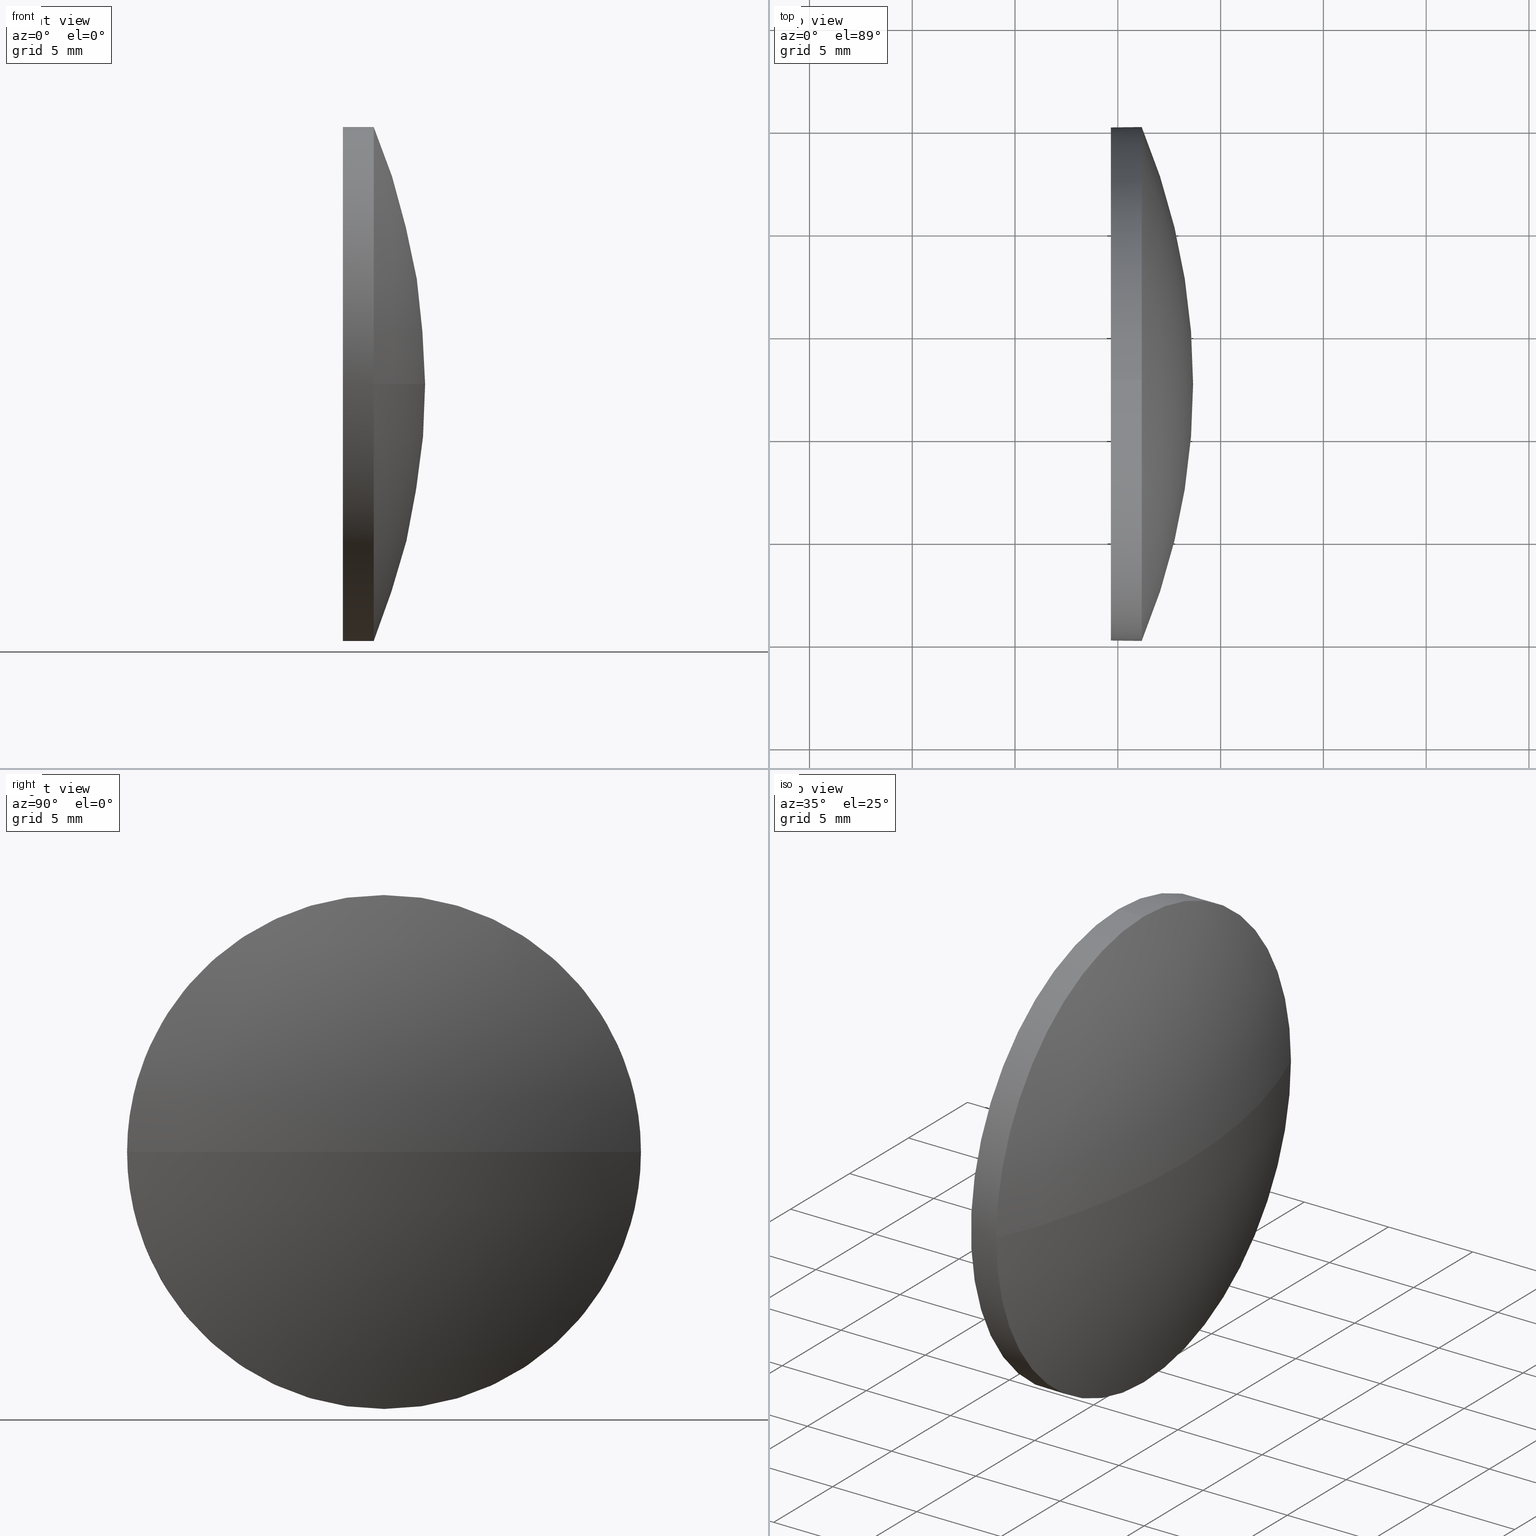
[diagram: canonical four-view strip — front | top / right | iso, engineering-drawing reading convention]
A machine part, canonical four-view strip (front | top / right | iso — engineering-drawing reading convention). The complete STEP part file that produces these views, byte-faithful:
ISO-10303-21;
HEADER;
FILE_DESCRIPTION (( 'STEP AP214' ),
    '1' );
FILE_NAME ('100213.STEP',
    '2019-05-23T08:19:44',
    ( '' ),
    ( '' ),
    'SwSTEP 2.0',
    'SolidWorks 2016',
    '' );
FILE_SCHEMA (( 'AUTOMOTIVE_DESIGN' ));
ENDSEC;

DATA;
#1 = AXIS2_PLACEMENT_3D ( 'NONE', #147, #84, #47 ) ;
#2 = COLOUR_RGB ( '',1.000000000000000000, 1.000000000000000000, 1.000000000000000000 ) ;
#3 = ORIENTED_EDGE ( 'NONE', *, *, #12, .F. ) ;
#4 = VECTOR ( 'NONE', #179, 1000.000000000000000 ) ;
#5 = ORIENTED_EDGE ( 'NONE', *, *, #106, .F. ) ;
#6 = AXIS2_PLACEMENT_3D ( 'NONE', #137, #65, #86 ) ;
#7 = CARTESIAN_POINT ( 'NONE',  ( 549.6628150025262600, 7.574565257038786500, -12.50000000000000000 ) ) ;
#8 = FILL_AREA_STYLE ('',( #112 ) ) ;
#9 = CYLINDRICAL_SURFACE ( 'NONE', #6, 12.50000000000000000 ) ;
#10 = AXIS2_PLACEMENT_3D ( 'NONE', #67, #163, #97 ) ;
#11 =( LENGTH_UNIT ( ) NAMED_UNIT ( * ) SI_UNIT ( .MILLI., .METRE. ) );
#12 = EDGE_CURVE ( 'NONE', #176, #143, #101, .T. ) ;
#13 = ADVANCED_FACE ( 'NONE', ( #107 ), #172, .F. ) ;
#14 = ORIENTED_EDGE ( 'NONE', *, *, #12, .T. ) ;
#15 = VERTEX_POINT ( 'NONE', #133 ) ;
#16 = DIRECTION ( 'NONE',  ( 0.0000000000000000000, 1.000000000000000000, 0.0000000000000000000 ) ) ;
#17 = ORIENTED_EDGE ( 'NONE', *, *, #178, .F. ) ;
#18 = DIRECTION ( 'NONE',  ( -0.0000000000000000000, 0.0000000000000000000, -1.000000000000000000 ) ) ;
#19 = ORIENTED_EDGE ( 'NONE', *, *, #26, .T. ) ;
#20 = DIRECTION ( 'NONE',  ( -1.000000000000000000, -0.0000000000000000000, -0.0000000000000000000 ) ) ;
#21 = EDGE_CURVE ( 'NONE', #27, #120, #156, .T. ) ;
#22 = CIRCLE ( 'NONE', #52, 12.50000000000000000 ) ;
#23 = CARTESIAN_POINT ( 'NONE',  ( 551.1628150025262600, 20.07456525703875600, 0.0000000000000000000 ) ) ;
#24 = APPLICATION_CONTEXT ( 'automotive_design' ) ;
#25 = ADVANCED_FACE ( 'NONE', ( #128 ), #158, .T. ) ;
#26 = EDGE_CURVE ( 'NONE', #153, #27, #54, .T. ) ;
#27 = VERTEX_POINT ( 'NONE', #62 ) ;
#28 = SURFACE_STYLE_FILL_AREA ( #183 ) ;
#29 =( GEOMETRIC_REPRESENTATION_CONTEXT ( 3 ) GLOBAL_UNCERTAINTY_ASSIGNED_CONTEXT ( ( #43 ) ) GLOBAL_UNIT_ASSIGNED_CONTEXT ( ( #11, #165, #117 ) ) REPRESENTATION_CONTEXT ( 'NONE', 'WORKASPACE' ) );
#30 = PRESENTATION_STYLE_ASSIGNMENT (( #51 ) ) ;
#31 = EDGE_CURVE ( 'NONE', #120, #116, #90, .T. ) ;
#32 = ORIENTED_EDGE ( 'NONE', *, *, #168, .F. ) ;
#33 = DIRECTION ( 'NONE',  ( 0.0000000000000000000, 0.0000000000000000000, 1.000000000000000000 ) ) ;
#34 = CARTESIAN_POINT ( 'NONE',  ( 521.1628150025261400, 7.574565257038766000, 0.0000000000000000000 ) ) ;
#35 = AXIS2_PLACEMENT_3D ( 'NONE', #34, #136, #49 ) ;
#36 = CARTESIAN_POINT ( 'NONE',  ( 549.6628150025262600, 7.574565257038784700, 0.0000000000000000000 ) ) ;
#37 = DIRECTION ( 'NONE',  ( 0.0000000000000000000, 1.000000000000000000, 1.224646799147353000E-016 ) ) ;
#38 = SURFACE_SIDE_STYLE ('',( #76 ) ) ;
#39 =( NAMED_UNIT ( * ) SI_UNIT ( $, .STERADIAN. ) SOLID_ANGLE_UNIT ( ) );
#40 = ORIENTED_EDGE ( 'NONE', *, *, #77, .F. ) ;
#41 = AXIS2_PLACEMENT_3D ( 'NONE', #99, #113, #33 ) ;
#42 = PRODUCT_CONTEXT ( 'NONE', #24, 'mechanical' ) ;
#43 = UNCERTAINTY_MEASURE_WITH_UNIT (LENGTH_MEASURE( 1.000000000000000100E-005 ), #11, 'distance_accuracy_value', 'NONE');
#44 =( LENGTH_UNIT ( ) NAMED_UNIT ( * ) SI_UNIT ( .MILLI., .METRE. ) );
#45 = FACE_OUTER_BOUND ( 'NONE', #166, .T. ) ;
#46 = EDGE_CURVE ( 'NONE', #176, #27, #140, .T. ) ;
#47 = DIRECTION ( 'NONE',  ( 0.0000000000000000000, 0.0000000000000000000, 1.000000000000000000 ) ) ;
#48 = ORIENTED_EDGE ( 'NONE', *, *, #21, .F. ) ;
#49 = DIRECTION ( 'NONE',  ( 1.000000000000000000, 0.0000000000000000000, 0.0000000000000000000 ) ) ;
#50 =( LENGTH_UNIT ( ) NAMED_UNIT ( * ) SI_UNIT ( .MILLI., .METRE. ) );
#51 = SURFACE_STYLE_USAGE ( .BOTH. , #38 ) ;
#52 = AXIS2_PLACEMENT_3D ( 'NONE', #100, #159, #80 ) ;
#53 = FILL_AREA_STYLE_COLOUR ( '', #2 ) ;
#54 = CIRCLE ( 'NONE', #83, 32.50000000000011400 ) ;
#55 = SHAPE_DEFINITION_REPRESENTATION ( #169, #95 ) ;
#56 = AXIS2_PLACEMENT_3D ( 'NONE', #79, #173, #132 ) ;
#57 = VECTOR ( 'NONE', #157, 1000.000000000000000 ) ;
#58 = ADVANCED_FACE ( 'NONE', ( #81 ), #9, .T. ) ;
#59 = ORIENTED_EDGE ( 'NONE', *, *, #46, .F. ) ;
#60 = CIRCLE ( 'NONE', #10, 12.50000000000000000 ) ;
#61 = LINE ( 'NONE', #138, #4 ) ;
#62 = CARTESIAN_POINT ( 'NONE',  ( 551.1628150025262600, -4.925434742961205500, -1.530808498934188000E-015 ) ) ;
#63 = SPHERICAL_SURFACE ( 'NONE', #69, 32.50000000000011400 ) ;
#64 = CIRCLE ( 'NONE', #35, 32.50000000000008500 ) ;
#65 = DIRECTION ( 'NONE',  ( -1.000000000000000000, -0.0000000000000000000, -0.0000000000000000000 ) ) ;
#66 = DIRECTION ( 'NONE',  ( 0.0000000000000000000, 1.000000000000000000, 0.0000000000000000000 ) ) ;
#67 = CARTESIAN_POINT ( 'NONE',  ( 549.6628150025262600, 7.574565257038784700, 0.0000000000000000000 ) ) ;
#68 = CARTESIAN_POINT ( 'NONE',  ( 521.1628150025261400, 7.574565257038766000, 0.0000000000000000000 ) ) ;
#69 = AXIS2_PLACEMENT_3D ( 'NONE', #177, #125, #66 ) ;
#70 = SURFACE_SIDE_STYLE ('',( #28 ) ) ;
#71 = AXIS2_PLACEMENT_3D ( 'NONE', #181, #20, #161 ) ;
#72 = DIRECTION ( 'NONE',  ( -1.000000000000000000, -0.0000000000000000000, -0.0000000000000000000 ) ) ;
#73 = COLOUR_RGB ( '',1.000000000000000000, 1.000000000000000000, 1.000000000000000000 ) ;
#74 = ADVANCED_FACE ( 'NONE', ( #45 ), #63, .T. ) ;
#75 = ORIENTED_EDGE ( 'NONE', *, *, #46, .T. ) ;
#76 = SURFACE_STYLE_FILL_AREA ( #8 ) ;
#77 = EDGE_CURVE ( 'NONE', #116, #176, #22, .T. ) ;
#78 = CLOSED_SHELL ( 'NONE', ( #58, #74, #25, #88, #13 ) ) ;
#79 = CARTESIAN_POINT ( 'NONE',  ( 549.6628150025262600, 7.574565257038784700, 0.0000000000000000000 ) ) ;
#80 = DIRECTION ( 'NONE',  ( 0.0000000000000000000, 0.0000000000000000000, 1.000000000000000000 ) ) ;
#81 = FACE_OUTER_BOUND ( 'NONE', #96, .T. ) ;
#82 =( NAMED_UNIT ( * ) PLANE_ANGLE_UNIT ( ) SI_UNIT ( $, .RADIAN. ) );
#83 = AXIS2_PLACEMENT_3D ( 'NONE', #68, #160, #37 ) ;
#84 = DIRECTION ( 'NONE',  ( -1.000000000000000000, -0.0000000000000000000, -0.0000000000000000000 ) ) ;
#85 = PRESENTATION_LAYER_ASSIGNMENT (  '', '', ( #124 ) ) ;
#86 = DIRECTION ( 'NONE',  ( 0.0000000000000000000, 0.0000000000000000000, 1.000000000000000000 ) ) ;
#87 = ORIENTED_EDGE ( 'NONE', *, *, #26, .F. ) ;
#88 = ADVANCED_FACE ( 'NONE', ( #162 ), #149, .T. ) ;
#89 = EDGE_CURVE ( 'NONE', #120, #15, #61, .T. ) ;
#90 = CIRCLE ( 'NONE', #71, 12.50000000000000000 ) ;
#91 = ORIENTED_EDGE ( 'NONE', *, *, #89, .F. ) ;
#92 = DIRECTION ( 'NONE',  ( 0.0000000000000000000, 0.0000000000000000000, 1.000000000000000000 ) ) ;
#93 = CARTESIAN_POINT ( 'NONE',  ( 547.6337074240892700, 7.574565257038786500, -12.50000000000000000 ) ) ;
#94 =( GEOMETRIC_REPRESENTATION_CONTEXT ( 3 ) GLOBAL_UNCERTAINTY_ASSIGNED_CONTEXT ( ( #170 ) ) GLOBAL_UNIT_ASSIGNED_CONTEXT ( ( #50, #82, #180 ) ) REPRESENTATION_CONTEXT ( 'NONE', 'WORKASPACE' ) );
#95 = ADVANCED_BREP_SHAPE_REPRESENTATION ( '100213', ( #110, #145 ), #174 ) ;
#96 = EDGE_LOOP ( 'NONE', ( #111, #14, #17, #91, #129 ) ) ;
#97 = DIRECTION ( 'NONE',  ( 0.0000000000000000000, 0.0000000000000000000, 1.000000000000000000 ) ) ;
#98 = PRESENTATION_LAYER_ASSIGNMENT (  '', '', ( #152 ) ) ;
#99 = CARTESIAN_POINT ( 'NONE',  ( 547.6337074240892700, 7.574565257038784700, 0.0000000000000000000 ) ) ;
#100 = CARTESIAN_POINT ( 'NONE',  ( 551.1628150025262600, 7.574565257038784700, 0.0000000000000000000 ) ) ;
#101 = LINE ( 'NONE', #93, #57 ) ;
#102 = PRODUCT_RELATED_PRODUCT_CATEGORY ( 'part', '', ( #155 ) ) ;
#103 = APPLICATION_PROTOCOL_DEFINITION ( 'draft international standard', 'automotive_design', 1998, #185 ) ;
#104 = DIRECTION ( 'NONE',  ( 1.000000000000000000, 0.0000000000000000000, 0.0000000000000000000 ) ) ;
#105 = AXIS2_PLACEMENT_3D ( 'NONE', #134, #175, #92 ) ;
#106 = EDGE_CURVE ( 'NONE', #153, #116, #64, .T. ) ;
#107 = FACE_OUTER_BOUND ( 'NONE', #118, .T. ) ;
#108 = MECHANICAL_DESIGN_GEOMETRIC_PRESENTATION_REPRESENTATION (  '', ( #152 ), #29 ) ;
#109 = PRODUCT_DEFINITION_FORMATION_WITH_SPECIFIED_SOURCE ( '�κ�', '', #155, .NOT_KNOWN. ) ;
#110 = MANIFOLD_SOLID_BREP ( '��ת1', #78 ) ;
#111 = ORIENTED_EDGE ( 'NONE', *, *, #77, .T. ) ;
#112 = FILL_AREA_STYLE_COLOUR ( '', #73 ) ;
#113 = DIRECTION ( 'NONE',  ( -1.000000000000000000, -0.0000000000000000000, -0.0000000000000000000 ) ) ;
#114 = CARTESIAN_POINT ( 'NONE',  ( 0.0000000000000000000, 0.0000000000000000000, 0.0000000000000000000 ) ) ;
#115 = DIRECTION ( 'NONE',  ( 0.0000000000000000000, 0.0000000000000000000, 1.000000000000000000 ) ) ;
#116 = VERTEX_POINT ( 'NONE', #23 ) ;
#117 =( NAMED_UNIT ( * ) SI_UNIT ( $, .STERADIAN. ) SOLID_ANGLE_UNIT ( ) );
#118 = EDGE_LOOP ( 'NONE', ( #131, #154 ) ) ;
#119 = ORIENTED_EDGE ( 'NONE', *, *, #106, .T. ) ;
#120 = VERTEX_POINT ( 'NONE', #123 ) ;
#121 = CARTESIAN_POINT ( 'NONE',  ( 521.1628150025261400, 7.574565257038766000, 0.0000000000000000000 ) ) ;
#122 = ORIENTED_EDGE ( 'NONE', *, *, #31, .F. ) ;
#123 = CARTESIAN_POINT ( 'NONE',  ( 551.1628150025262600, 7.574565257038784700, 12.50000000000000000 ) ) ;
#124 = STYLED_ITEM ( 'NONE', ( #30 ), #110 ) ;
#125 = DIRECTION ( 'NONE',  ( -0.0000000000000000000, 0.0000000000000000000, -1.000000000000000000 ) ) ;
#126 = APPLICATION_PROTOCOL_DEFINITION ( 'draft international standard', 'automotive_design', 1998, #24 ) ;
#127 = EDGE_LOOP ( 'NONE', ( #3, #75, #184, #135, #32 ) ) ;
#128 = FACE_OUTER_BOUND ( 'NONE', #151, .T. ) ;
#129 = ORIENTED_EDGE ( 'NONE', *, *, #31, .T. ) ;
#130 = MECHANICAL_DESIGN_GEOMETRIC_PRESENTATION_REPRESENTATION (  '', ( #124 ), #94 ) ;
#131 = ORIENTED_EDGE ( 'NONE', *, *, #178, .T. ) ;
#132 = DIRECTION ( 'NONE',  ( 0.0000000000000000000, 0.0000000000000000000, -1.000000000000000000 ) ) ;
#133 = CARTESIAN_POINT ( 'NONE',  ( 549.6628150025262600, 7.574565257038784700, 12.50000000000000000 ) ) ;
#134 = CARTESIAN_POINT ( 'NONE',  ( 551.1628150025262600, 7.574565257038784700, 0.0000000000000000000 ) ) ;
#135 = ORIENTED_EDGE ( 'NONE', *, *, #89, .T. ) ;
#136 = DIRECTION ( 'NONE',  ( -0.0000000000000000000, 0.0000000000000000000, 1.000000000000000000 ) ) ;
#137 = CARTESIAN_POINT ( 'NONE',  ( 547.6337074240892700, 7.574565257038784700, 0.0000000000000000000 ) ) ;
#138 = CARTESIAN_POINT ( 'NONE',  ( 547.6337074240892700, 7.574565257038784700, 12.50000000000000000 ) ) ;
#139 = UNCERTAINTY_MEASURE_WITH_UNIT (LENGTH_MEASURE( 1.000000000000000100E-005 ), #44, 'distance_accuracy_value', 'NONE');
#140 = CIRCLE ( 'NONE', #1, 12.50000000000000000 ) ;
#141 = DIRECTION ( 'NONE',  ( 0.0000000000000000000, 0.0000000000000000000, 1.000000000000000000 ) ) ;
#142 = PRODUCT_DEFINITION ( 'δ֪', '', #109, #146 ) ;
#143 = VERTEX_POINT ( 'NONE', #7 ) ;
#144 = PRESENTATION_STYLE_ASSIGNMENT (( #167 ) ) ;
#145 = AXIS2_PLACEMENT_3D ( 'NONE', #114, #115, #104 ) ;
#146 = PRODUCT_DEFINITION_CONTEXT ( 'detailed design', #185, 'design' ) ;
#147 = CARTESIAN_POINT ( 'NONE',  ( 551.1628150025262600, 7.574565257038784700, 0.0000000000000000000 ) ) ;
#148 = CARTESIAN_POINT ( 'NONE',  ( 551.1628150025262600, 7.574565257038786500, -12.50000000000000000 ) ) ;
#149 = CYLINDRICAL_SURFACE ( 'NONE', #41, 12.50000000000000000 ) ;
#150 = CARTESIAN_POINT ( 'NONE',  ( 553.6628150025262600, 7.574565257038767800, 0.0000000000000000000 ) ) ;
#151 = EDGE_LOOP ( 'NONE', ( #87, #119, #122, #48 ) ) ;
#152 = STYLED_ITEM ( 'NONE', ( #144 ), #95 ) ;
#153 = VERTEX_POINT ( 'NONE', #150 ) ;
#154 = ORIENTED_EDGE ( 'NONE', *, *, #168, .T. ) ;
#155 = PRODUCT ( '100213', '100213', '', ( #42 ) ) ;
#156 = CIRCLE ( 'NONE', #105, 12.50000000000000000 ) ;
#157 = DIRECTION ( 'NONE',  ( -1.000000000000000000, -0.0000000000000000000, -0.0000000000000000000 ) ) ;
#158 = SPHERICAL_SURFACE ( 'NONE', #182, 32.50000000000011400 ) ;
#159 = DIRECTION ( 'NONE',  ( -1.000000000000000000, -0.0000000000000000000, -0.0000000000000000000 ) ) ;
#160 = DIRECTION ( 'NONE',  ( 0.0000000000000000000, 1.224646799147353200E-016, -1.000000000000000000 ) ) ;
#161 = DIRECTION ( 'NONE',  ( 0.0000000000000000000, 0.0000000000000000000, 1.000000000000000000 ) ) ;
#162 = FACE_OUTER_BOUND ( 'NONE', #127, .T. ) ;
#163 = DIRECTION ( 'NONE',  ( -1.000000000000000000, -0.0000000000000000000, -0.0000000000000000000 ) ) ;
#164 = AXIS2_PLACEMENT_3D ( 'NONE', #36, #72, #141 ) ;
#165 =( NAMED_UNIT ( * ) PLANE_ANGLE_UNIT ( ) SI_UNIT ( $, .RADIAN. ) );
#166 = EDGE_LOOP ( 'NONE', ( #5, #19, #59, #40 ) ) ;
#167 = SURFACE_STYLE_USAGE ( .BOTH. , #70 ) ;
#168 = EDGE_CURVE ( 'NONE', #143, #15, #60, .T. ) ;
#169 = PRODUCT_DEFINITION_SHAPE ( 'NONE', 'NONE',  #142 ) ;
#170 = UNCERTAINTY_MEASURE_WITH_UNIT (LENGTH_MEASURE( 1.000000000000000100E-005 ), #50, 'distance_accuracy_value', 'NONE');
#171 = CIRCLE ( 'NONE', #164, 12.50000000000000000 ) ;
#172 = PLANE ( 'NONE',  #56 ) ;
#173 = DIRECTION ( 'NONE',  ( 1.000000000000000000, 0.0000000000000000000, 0.0000000000000000000 ) ) ;
#174 =( GEOMETRIC_REPRESENTATION_CONTEXT ( 3 ) GLOBAL_UNCERTAINTY_ASSIGNED_CONTEXT ( ( #139 ) ) GLOBAL_UNIT_ASSIGNED_CONTEXT ( ( #44, #186, #39 ) ) REPRESENTATION_CONTEXT ( 'NONE', 'WORKASPACE' ) );
#175 = DIRECTION ( 'NONE',  ( -1.000000000000000000, -0.0000000000000000000, -0.0000000000000000000 ) ) ;
#176 = VERTEX_POINT ( 'NONE', #148 ) ;
#177 = CARTESIAN_POINT ( 'NONE',  ( 521.1628150025261400, 7.574565257038766000, 0.0000000000000000000 ) ) ;
#178 = EDGE_CURVE ( 'NONE', #15, #143, #171, .T. ) ;
#179 = DIRECTION ( 'NONE',  ( -1.000000000000000000, -0.0000000000000000000, -0.0000000000000000000 ) ) ;
#180 =( NAMED_UNIT ( * ) SI_UNIT ( $, .STERADIAN. ) SOLID_ANGLE_UNIT ( ) );
#181 = CARTESIAN_POINT ( 'NONE',  ( 551.1628150025262600, 7.574565257038784700, 0.0000000000000000000 ) ) ;
#182 = AXIS2_PLACEMENT_3D ( 'NONE', #121, #18, #16 ) ;
#183 = FILL_AREA_STYLE ('',( #53 ) ) ;
#184 = ORIENTED_EDGE ( 'NONE', *, *, #21, .T. ) ;
#185 = APPLICATION_CONTEXT ( 'automotive_design' ) ;
#186 =( NAMED_UNIT ( * ) PLANE_ANGLE_UNIT ( ) SI_UNIT ( $, .RADIAN. ) );
ENDSEC;
END-ISO-10303-21;
